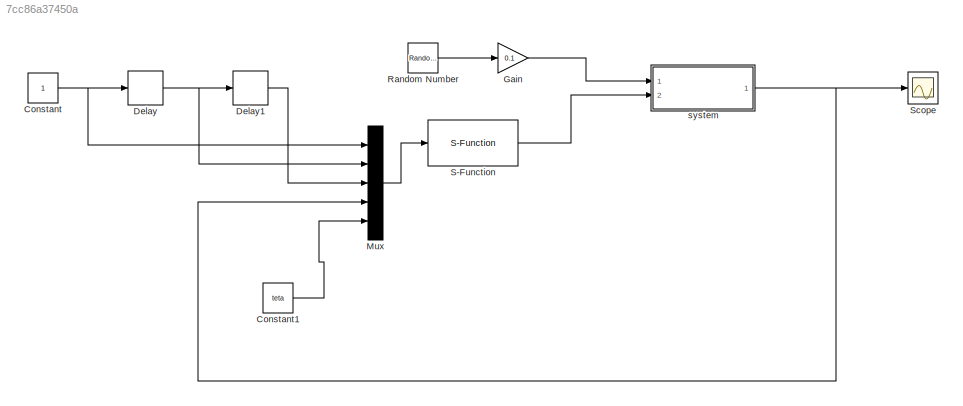
MODEL slx_7cc86a37450a
KIND model
CONFIG AbsTol = auto
CONFIG EnableMultiTasking = off
CONFIG FixedStep = auto
CONFIG MaxStep = auto
CONFIG MinStep = auto
CONFIG RelTol = 1e-3
CONFIG SampleTimeConstraint = Unconstrained
CONFIG SolverName = VariableStepAuto
CONFIG StartTime = 0.0
CONFIG StopTime = 10.0
WORKSPACE source: mxarray member
WORKSPACE teta = [-1.5 0.54 2 -1.8]
BLOCK [Constant] Constant
BLOCK [Constant] Constant1
  Value = teta
BLOCK [Delay] Delay
  DelayLength = 1
  InputPortMap = u0
  Ports = [1, 1]
BLOCK [Delay] Delay1
  DelayLength = 1
  InputPortMap = u0
  Ports = [1, 1]
BLOCK [Gain] Gain
  Gain = 0.1
BLOCK [Mux] Mux
  DisplayOption = bar
  Inputs = 5
  Ports = [5, 1]
BLOCK [RandomNumber] Random Number
  SampleTime = 0.1
  Variance = 0.01
BLOCK [S-Function] S-Function
  EnableBusSupport = off
  FunctionName = szabalyozo_s
  Ports = [1, 1]
  SFcnIsStateOwnerBlock = off
  SFunctionDeploymentMode = off
BLOCK [Scope] Scope
  Floating = off
  NumInputPorts = 1
  Ports = [1]
  ScopeSpecificationString = Simulink.scopes.TimeScopeBlockCfg('CurrentConfiguration', extmgr.ConfigurationSet(extmgr.Configuration('Core','General UI',true),extmgr.Configuration('Core','Source UI',true),extmgr.Configuration('Sources','WiredSimulink',true),extmgr.Configuration('Visuals','Time Domain',true,'SerializedDisplays',{struct('MinYLimReal','-0.09325','MaxYLimReal','1.18876','YLabelReal','','MinYLimMag','0.00000','MaxY...<+1353ch>
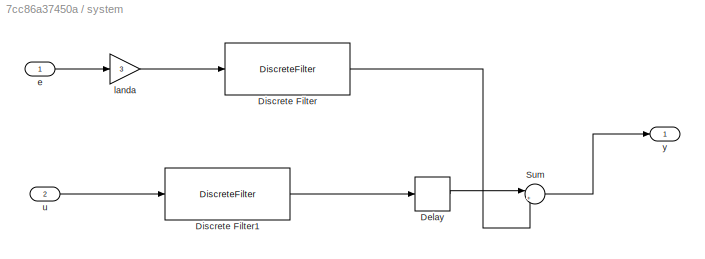
BLOCK [SubSystem] system
  Ports = [2, 1]
  RequestExecContextInheritance = off
BLOCK [Delay] system/Delay
  DelayLength = 1
  InitialCondition = 0
  InputPortMap = u0
  Ports = [1, 1]
BLOCK [DiscreteFilter] system/Discrete Filter
  Denominator = A
  InputPortMap = u0
  Numerator = [C]
  Ports = [1, 1]
BLOCK [DiscreteFilter] system/Discrete Filter1
  Denominator = A
  InputPortMap = u0
  Numerator = B
  Ports = [1, 1]
BLOCK [Sum] system/Sum
  Inputs = |++
  Ports = [2, 1]
BLOCK [Inport] system/e
BLOCK [Gain] system/landa
  Gain = 3
BLOCK [Inport] system/u
  Port = 2
BLOCK [Outport] system/y
LINE Constant1:1 -> Mux:5
NET Constant:1 -> Delay:1, Mux:1
LINE Delay1:1 -> Mux:3
NET Delay:1 -> Delay1:1, Mux:2
LINE Gain:1 -> system:1
LINE Mux:1 -> S-Function:1
LINE Random Number:1 -> Gain:1
LINE S-Function:1 -> system:2
LINE system/Delay:1 -> system/Sum:1
LINE system/Discrete Filter1:1 -> system/Delay:1
LINE system/Discrete Filter:1 -> system/Sum:2
LINE system/Sum:1 -> system/y:1
LINE system/e:1 -> system/landa:1
LINE system/landa:1 -> system/Discrete Filter:1
LINE system/u:1 -> system/Discrete Filter1:1
NET system:1 -> Mux:4, Scope:1
note: NET lines group one-source signal fan-out (src -> all destinations, sorted); 1:1 wires keep LINE
